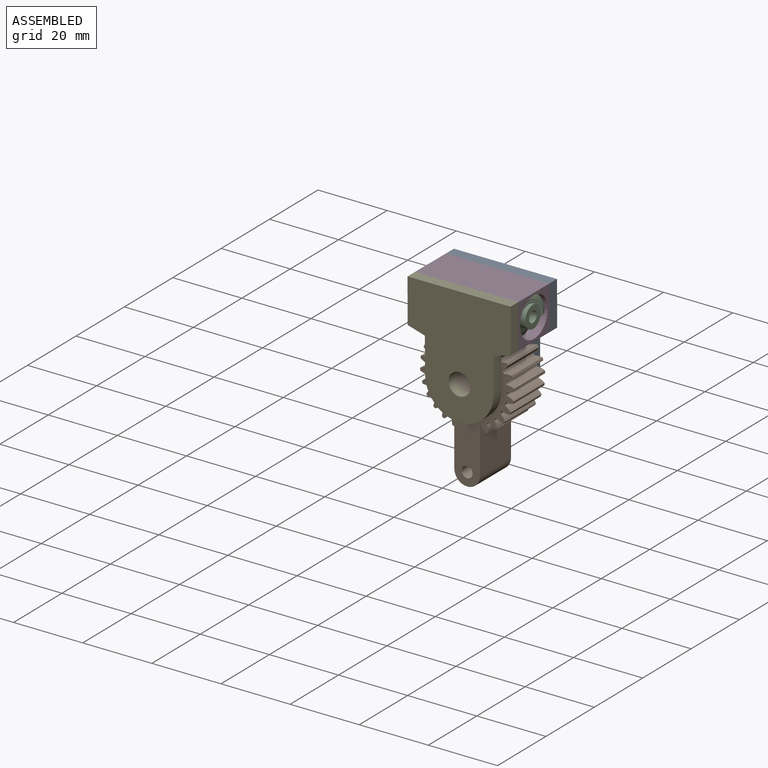
[diagram: assembled view]
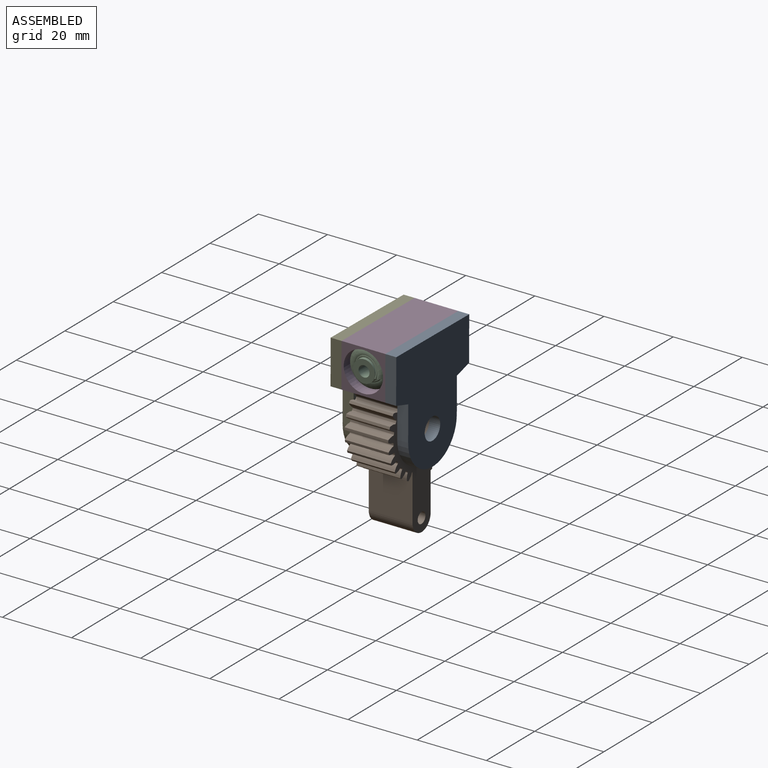
[diagram: assembled view, second angle]
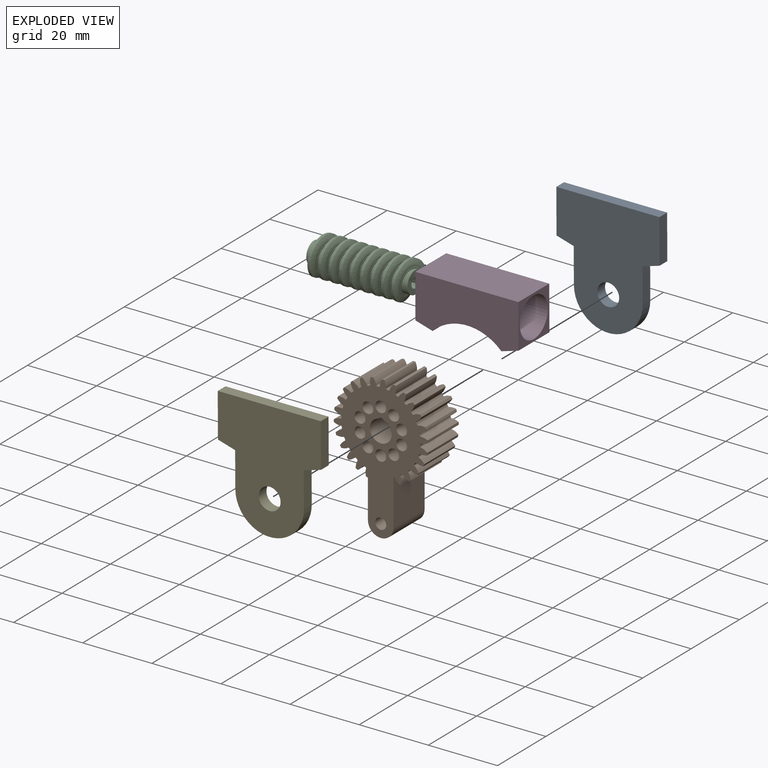
[diagram: exploded view]
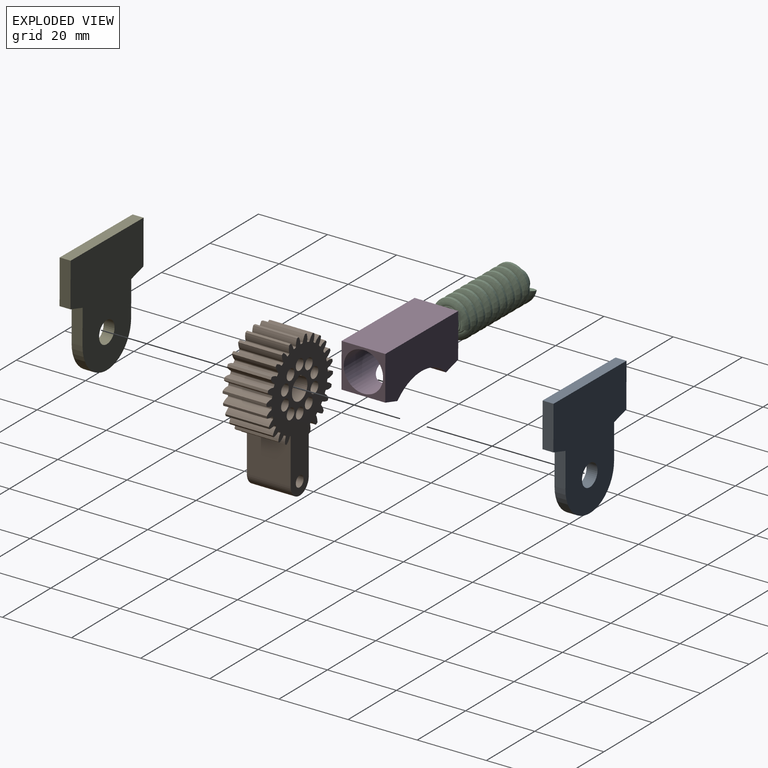
[diagram: exploded view, second angle]
ASSEMBLY  parts=5 mates=4
PART A: 11 faces, bbox 29.9x3.2x34.2 mm
  f0: plane 10.08x3.18mm, normal (-1,0,0), area 32mm2, adj f1,f7,f8,f9
  f1: cylinder r=9.97mm len=19.95mm, axis (0,-1,0), area 99.5mm2, adj f0,f2,f8,f9
  f2: plane 10.08x3.18mm, normal (1,0,0), area 32mm2, adj f1,f3,f8,f9
  f3: plane 4.99x3.18mm, normal (0.28,0,-0.96), area 16.5mm2, adj f2,f4,f8,f9
  f4: plane 12.7x3.18mm, normal (1,0,0), area 40.3mm2, adj f3,f5,f8,f9
  f5: plane 29.92x3.18mm, normal (0,0,1), area 95mm2, adj f4,f6,f8,f9
  f6: plane 12.7x3.18mm, normal (-1,0,0), area 40.3mm2, adj f5,f7,f8,f9
  f7: plane 4.99x3.18mm, normal (-0.28,0,-0.96), area 16.5mm2, adj f0,f6,f8,f9
  f8: plane 34.21x29.92mm, normal (0,1,0), area 742.1mm2, adj f0,f1,f2,f3,f4,f5,f6,f7
  f9: plane 34.21x29.92mm, normal (0,-1,0), area 742.1mm2, adj f0,f1,f2,f3,f4,f5,f6,f7
  f10: cylinder r=3.17mm len=6.35mm, axis (0,-1,0), area 63.3mm2, adj f8,f9
PART B: 161 faces, bbox 27.3x12.7x41.6 mm
  f0: cylinder r=0.35mm len=12.7mm, axis (0,1,0), area 5.9mm2, adj f1,f2,f75,f157
  f1: plane 41.59x27.34mm, normal (0,-1,0), area 490.3mm2, adj f0,f3,f4,f5,f6,f7,f8,f9
  f2: plane 41.59x27.34mm, normal (0,1,0), area 490.3mm2, adj f0,f3,f4,f5,f6,f7,f8,f9
  f3: extruded ~12.7x1.92mm, area 25.2mm2, adj f1,f2,f96,f97
  f4: cylinder r=11.48mm len=12.7mm, axis (0,1,0), area 4.7mm2, adj f1,f2,f97,f98
  f5: extruded ~12.7x1.63mm, area 25.2mm2, adj f1,f2,f6,f98
  f6: cylinder r=13.68mm len=12.7mm, axis (0,1,0), area 9mm2, adj f1,f2,f5,f7
  f7: extruded ~12.7x1.96mm, area 25.2mm2, adj f1,f2,f6,f99
  f8: cylinder r=11.48mm len=12.7mm, axis (0,1,0), area 4.7mm2, adj f1,f2,f99,f100
  f9: extruded ~12.7x1.44mm, area 25.2mm2, adj f1,f2,f10,f100
  f10: cylinder r=13.68mm len=12.7mm, axis (0,1,0), area 9mm2, adj f1,f2,f9,f11
  f11: extruded ~12.7x1.89mm, area 25.2mm2, adj f1,f2,f10,f101
  f12: cylinder r=11.48mm len=12.7mm, axis (0,1,0), area 4.7mm2, adj f1,f2,f101,f102
  f13: extruded ~12.7x1.72mm, area 25.2mm2, adj f1,f2,f14,f102
  f14: cylinder r=13.68mm len=12.7mm, axis (0,1,0), area 9mm2, adj f1,f2,f13,f15
  f15: extruded ~12.7x1.71mm, area 25.2mm2, adj f1,f2,f14,f103
  f16: cylinder r=11.48mm len=12.7mm, axis (0,1,0), area 4.7mm2, adj f1,f2,f103,f104
  f17: extruded ~12.7x1.89mm, area 25.2mm2, adj f1,f2,f18,f104
  f18: cylinder r=13.68mm len=12.7mm, axis (0,1,0), area 9mm2, adj f1,f2,f17,f19
  f19: extruded ~12.7x1.43mm, area 25.2mm2, adj f1,f2,f18,f105
  f20: cylinder r=11.48mm len=12.7mm, axis (0,1,0), area 4.7mm2, adj f1,f2,f105,f106
  f21: extruded ~12.7x1.96mm, area 25.2mm2, adj f1,f2,f22,f106
  f22: cylinder r=13.68mm len=12.7mm, axis (0,1,0), area 9mm2, adj f1,f2,f21,f23
  f23: extruded ~12.7x1.65mm, area 25.2mm2, adj f1,f2,f22,f107
  f24: cylinder r=11.48mm len=12.7mm, axis (0,1,0), area 4.7mm2, adj f1,f2,f107,f108
  f25: extruded ~12.7x1.91mm, area 25.2mm2, adj f1,f2,f26,f108
  f26: cylinder r=13.68mm len=12.7mm, axis (0,1,0), area 9mm2, adj f1,f2,f25,f27
  f27: extruded ~12.7x1.85mm, area 25.2mm2, adj f1,f2,f26,f109
  f28: cylinder r=11.48mm len=12.7mm, axis (0,1,0), area 4.7mm2, adj f1,f2,f109,f110
  f29: extruded ~12.7x1.75mm, area 25.2mm2, adj f1,f2,f30,f110
  f30: cylinder r=13.68mm len=12.7mm, axis (0,1,0), area 9mm2, adj f1,f2,f29,f31
  f31: extruded ~12.7x1.95mm, area 25.2mm2, adj f1,f2,f30,f111
  f32: cylinder r=11.48mm len=12.7mm, axis (0,1,0), area 4.7mm2, adj f1,f2,f111,f112
  f33: extruded ~12.7x1.49mm, area 25.2mm2, adj f1,f2,f34,f112
  f34: cylinder r=13.68mm len=12.7mm, axis (0,1,0), area 9mm2, adj f1,f2,f33,f35
  f35: extruded ~12.7x1.94mm, area 25.2mm2, adj f1,f2,f34,f113
  f36: cylinder r=11.48mm len=12.7mm, axis (0,1,0), area 4.7mm2, adj f1,f2,f113,f114
  f37: extruded ~12.7x1.59mm, area 25.2mm2, adj f1,f2,f38,f114
  f38: cylinder r=13.68mm len=12.7mm, axis (0,1,0), area 9mm2, adj f1,f2,f37,f39
  f39: extruded ~12.7x1.81mm, area 25.2mm2, adj f1,f2,f38,f115
  f40: cylinder r=11.48mm len=12.7mm, axis (0,1,0), area 4.7mm2, adj f1,f2,f115,f116
  f41: extruded ~12.7x1.82mm, area 25.2mm2, adj f1,f2,f42,f116
  f42: cylinder r=13.68mm len=12.7mm, axis (0,1,0), area 9mm2, adj f1,f2,f41,f43
  f43: extruded ~12.7x1.58mm, area 25.2mm2, adj f1,f2,f42,f117
  f44: cylinder r=11.48mm len=12.7mm, axis (0,1,0), area 4.7mm2, adj f1,f2,f117,f118
  f45: extruded ~12.7x1.94mm, area 25.2mm2, adj f1,f2,f46,f118
  f46: cylinder r=13.68mm len=12.7mm, axis (0,1,0), area 9mm2, adj f1,f2,f45,f47
  f47: extruded ~12.7x1.51mm, area 25.2mm2, adj f1,f2,f46,f119
  f48: cylinder r=11.48mm len=12.7mm, axis (0,1,0), area 4.7mm2, adj f1,f2,f119,f120
  f49: extruded ~12.7x1.95mm, area 25.2mm2, adj f1,f2,f50,f120
  f50: cylinder r=13.68mm len=12.7mm, axis (0,1,0), area 9mm2, adj f1,f2,f49,f51
  f51: extruded ~12.7x1.76mm, area 25.2mm2, adj f1,f2,f50,f121
  f52: cylinder r=11.48mm len=12.7mm, axis (0,1,0), area 4.7mm2, adj f1,f2,f121,f122
  f53: extruded ~12.7x1.85mm, area 25.2mm2, adj f1,f2,f54,f122
  f54: cylinder r=13.68mm len=12.7mm, axis (0,1,0), area 9mm2, adj f1,f2,f53,f55
  f55: extruded ~12.7x1.92mm, area 25.2mm2, adj f1,f2,f54,f123
  f56: cylinder r=11.48mm len=12.7mm, axis (0,1,0), area 4.7mm2, adj f1,f2,f123,f124
  f57: extruded ~12.7x1.63mm, area 25.2mm2, adj f1,f2,f58,f124
  f58: cylinder r=13.68mm len=12.7mm, axis (0,1,0), area 9mm2, adj f1,f2,f57,f59
  f59: extruded ~12.7x1.96mm, area 25.2mm2, adj f1,f2,f58,f125
  f60: cylinder r=11.48mm len=12.7mm, axis (0,1,0), area 4.7mm2, adj f1,f2,f125,f126
  f61: extruded ~12.7x1.44mm, area 25.2mm2, adj f1,f2,f62,f126
  f62: cylinder r=13.68mm len=12.7mm, axis (0,1,0), area 9mm2, adj f1,f2,f61,f63
  f63: extruded ~12.7x1.89mm, area 25.2mm2, adj f1,f2,f62,f127
  f64: cylinder r=11.48mm len=12.7mm, axis (0,1,0), area 4.7mm2, adj f1,f2,f127,f128
  f65: extruded ~12.7x1.72mm, area 25.2mm2, adj f1,f2,f66,f128
  f66: cylinder r=13.68mm len=12.7mm, axis (0,1,0), area 9mm2, adj f1,f2,f65,f67
  f67: extruded ~12.7x1.71mm, area 25.2mm2, adj f1,f2,f66,f129
  f68: cylinder r=11.48mm len=12.7mm, axis (0,1,0), area 4.7mm2, adj f1,f2,f129,f130
  f69: extruded ~12.7x1.89mm, area 25.2mm2, adj f1,f2,f70,f130
  f70: cylinder r=13.68mm len=12.7mm, axis (0,1,0), area 9mm2, adj f1,f2,f69,f71
  f71: extruded ~12.7x1.43mm, area 25.2mm2, adj f1,f2,f70,f131
  f72: cylinder r=11.48mm len=12.7mm, axis (0,1,0), area 4.7mm2, adj f1,f2,f131,f132
  f73: extruded ~12.7x1.96mm, area 25.2mm2, adj f1,f2,f74,f132
  f74: cylinder r=13.68mm len=12.7mm, axis (0,1,0), area 7.8mm2, adj f1,f2,f73,f158
  f75: extruded ~12.7x1.49mm, area 25.2mm2, adj f0,f1,f2,f76
  f76: cylinder r=13.68mm len=12.7mm, axis (0,1,0), area 9mm2, adj f1,f2,f75,f77
  f77: extruded ~12.7x1.94mm, area 25.2mm2, adj f1,f2,f76,f133
  f78: cylinder r=11.48mm len=12.7mm, axis (0,1,0), area 4.7mm2, adj f1,f2,f133,f134
  f79: extruded ~12.7x1.59mm, area 25.2mm2, adj f1,f2,f80,f134
  f80: cylinder r=13.68mm len=12.7mm, axis (0,1,0), area 9mm2, adj f1,f2,f79,f81
  f81: extruded ~12.7x1.81mm, area 25.2mm2, adj f1,f2,f80,f135
  f82: cylinder r=11.48mm len=12.7mm, axis (0,1,0), area 4.7mm2, adj f1,f2,f135,f136
  f83: extruded ~12.7x1.82mm, area 25.2mm2, adj f1,f2,f84,f136
  f84: cylinder r=13.68mm len=12.7mm, axis (0,1,0), area 9mm2, adj f1,f2,f83,f85
  f85: extruded ~12.7x1.58mm, area 25.2mm2, adj f1,f2,f84,f137
  f86: cylinder r=11.48mm len=12.7mm, axis (0,1,0), area 4.7mm2, adj f1,f2,f137,f138
  f87: extruded ~12.7x1.94mm, area 25.2mm2, adj f1,f2,f88,f138
  f88: cylinder r=13.68mm len=12.7mm, axis (0,1,0), area 9mm2, adj f1,f2,f87,f89
  f89: extruded ~12.7x1.51mm, area 25.2mm2, adj f1,f2,f88,f139
  f90: cylinder r=11.48mm len=12.7mm, axis (0,1,0), area 4.7mm2, adj f1,f2,f139,f140
  f91: extruded ~12.7x1.95mm, area 25.2mm2, adj f1,f2,f92,f140
  f92: cylinder r=13.68mm len=12.7mm, axis (0,1,0), area 9mm2, adj f1,f2,f91,f93
  f93: extruded ~12.7x1.76mm, area 25.2mm2, adj f1,f2,f92,f141
  f94: cylinder r=11.48mm len=12.7mm, axis (0,1,0), area 4.7mm2, adj f1,f2,f141,f142
  f95: extruded ~12.7x1.85mm, area 25.2mm2, adj f1,f2,f96,f142
  f96: cylinder r=13.68mm len=12.7mm, axis (0,1,0), area 9mm2, adj f1,f2,f3,f95
  f97: cylinder r=0.35mm len=12.7mm, axis (0,1,0), area 6.8mm2, adj f1,f2,f3,f4
  f98: cylinder r=0.35mm len=12.7mm, axis (0,1,0), area 6.8mm2, adj f1,f2,f4,f5
  f99: cylinder r=0.35mm len=12.7mm, axis (0,1,0), area 6.8mm2, adj f1,f2,f7,f8
  f100: cylinder r=0.35mm len=12.7mm, axis (0,1,0), area 6.8mm2, adj f1,f2,f8,f9
  f101: cylinder r=0.35mm len=12.7mm, axis (0,1,0), area 6.8mm2, adj f1,f2,f11,f12
  f102: cylinder r=0.35mm len=12.7mm, axis (0,1,0), area 6.8mm2, adj f1,f2,f12,f13
  f103: cylinder r=0.35mm len=12.7mm, axis (0,1,0), area 6.8mm2, adj f1,f2,f15,f16
  f104: cylinder r=0.35mm len=12.7mm, axis (0,1,0), area 6.8mm2, adj f1,f2,f16,f17
  f105: cylinder r=0.35mm len=12.7mm, axis (0,1,0), area 6.8mm2, adj f1,f2,f19,f20
  f106: cylinder r=0.35mm len=12.7mm, axis (0,1,0), area 6.8mm2, adj f1,f2,f20,f21
  f107: cylinder r=0.35mm len=12.7mm, axis (0,1,0), area 6.8mm2, adj f1,f2,f23,f24
  f108: cylinder r=0.35mm len=12.7mm, axis (0,1,0), area 6.8mm2, adj f1,f2,f24,f25
  f109: cylinder r=0.35mm len=12.7mm, axis (0,1,0), area 6.8mm2, adj f1,f2,f27,f28
  f110: cylinder r=0.35mm len=12.7mm, axis (0,1,0), area 6.8mm2, adj f1,f2,f28,f29
  f111: cylinder r=0.35mm len=12.7mm, axis (0,1,0), area 6.8mm2, adj f1,f2,f31,f32
  f112: cylinder r=0.35mm len=12.7mm, axis (0,1,0), area 6.8mm2, adj f1,f2,f32,f33
  f113: cylinder r=0.35mm len=12.7mm, axis (0,1,0), area 6.8mm2, adj f1,f2,f35,f36
  f114: cylinder r=0.35mm len=12.7mm, axis (0,1,0), area 6.8mm2, adj f1,f2,f36,f37
  f115: cylinder r=0.35mm len=12.7mm, axis (0,1,0), area 6.8mm2, adj f1,f2,f39,f40
  f116: cylinder r=0.35mm len=12.7mm, axis (0,1,0), area 6.8mm2, adj f1,f2,f40,f41
  f117: cylinder r=0.35mm len=12.7mm, axis (0,1,0), area 6.8mm2, adj f1,f2,f43,f44
  f118: cylinder r=0.35mm len=12.7mm, axis (0,1,0), area 6.8mm2, adj f1,f2,f44,f45
  f119: cylinder r=0.35mm len=12.7mm, axis (0,1,0), area 6.8mm2, adj f1,f2,f47,f48
  f120: cylinder r=0.35mm len=12.7mm, axis (0,1,0), area 6.8mm2, adj f1,f2,f48,f49
  f121: cylinder r=0.35mm len=12.7mm, axis (0,1,0), area 6.8mm2, adj f1,f2,f51,f52
  f122: cylinder r=0.35mm len=12.7mm, axis (0,1,0), area 6.8mm2, adj f1,f2,f52,f53
  f123: cylinder r=0.35mm len=12.7mm, axis (0,1,0), area 6.8mm2, adj f1,f2,f55,f56
  f124: cylinder r=0.35mm len=12.7mm, axis (0,1,0), area 6.8mm2, adj f1,f2,f56,f57
  f125: cylinder r=0.35mm len=12.7mm, axis (0,1,0), area 6.8mm2, adj f1,f2,f59,f60
  f126: cylinder r=0.35mm len=12.7mm, axis (0,1,0), area 6.8mm2, adj f1,f2,f60,f61
  f127: cylinder r=0.35mm len=12.7mm, axis (0,1,0), area 6.8mm2, adj f1,f2,f63,f64
  f128: cylinder r=0.35mm len=12.7mm, axis (0,1,0), area 6.8mm2, adj f1,f2,f64,f65
  f129: cylinder r=0.35mm len=12.7mm, axis (0,1,0), area 6.8mm2, adj f1,f2,f67,f68
  f130: cylinder r=0.35mm len=12.7mm, axis (0,1,0), area 6.8mm2, adj f1,f2,f68,f69
  f131: cylinder r=0.35mm len=12.7mm, axis (0,1,0), area 6.8mm2, adj f1,f2,f71,f72
  f132: cylinder r=0.35mm len=12.7mm, axis (0,1,0), area 6.8mm2, adj f1,f2,f72,f73
  f133: cylinder r=0.35mm len=12.7mm, axis (0,1,0), area 6.8mm2, adj f1,f2,f77,f78
  f134: cylinder r=0.35mm len=12.7mm, axis (0,1,0), area 6.8mm2, adj f1,f2,f78,f79
  f135: cylinder r=0.35mm len=12.7mm, axis (0,1,0), area 6.8mm2, adj f1,f2,f81,f82
  f136: cylinder r=0.35mm len=12.7mm, axis (0,1,0), area 6.8mm2, adj f1,f2,f82,f83
  f137: cylinder r=0.35mm len=12.7mm, axis (0,1,0), area 6.8mm2, adj f1,f2,f85,f86
  f138: cylinder r=0.35mm len=12.7mm, axis (0,1,0), area 6.8mm2, adj f1,f2,f86,f87
  f139: cylinder r=0.35mm len=12.7mm, axis (0,1,0), area 6.8mm2, adj f1,f2,f89,f90
  f140: cylinder r=0.35mm len=12.7mm, axis (0,1,0), area 6.8mm2, adj f1,f2,f90,f91
  f141: cylinder r=0.35mm len=12.7mm, axis (0,1,0), area 6.8mm2, adj f1,f2,f93,f94
  f142: cylinder r=0.35mm len=12.7mm, axis (0,1,0), area 6.8mm2, adj f1,f2,f94,f95
  f143: cylinder r=1.59mm len=12.7mm, axis (0,-1,0), area 126.7mm2, adj f1,f2
  f144: cylinder r=1.59mm len=12.7mm, axis (0,-1,0), area 126.7mm2, adj f1,f2
  f145: cylinder r=1.59mm len=12.7mm, axis (0,-1,0), area 126.7mm2, adj f1,f2
  f146: cylinder r=1.59mm len=12.7mm, axis (0,-1,0), area 126.7mm2, adj f1,f2
  f147: cylinder r=1.59mm len=12.7mm, axis (0,-1,0), area 126.7mm2, adj f1,f2
  f148: cylinder r=1.59mm len=12.7mm, axis (0,-1,0), area 126.7mm2, adj f1,f2
  f149: cylinder r=1.59mm len=12.7mm, axis (0,-1,0), area 126.7mm2, adj f1,f2
  f150: cylinder r=1.59mm len=12.7mm, axis (0,-1,0), area 126.7mm2, adj f1,f2
  f151: cylinder r=1.59mm len=12.7mm, axis (0,-1,0), area 126.7mm2, adj f1,f2
  f152: cylinder r=1.59mm len=12.7mm, axis (0,-1,0), area 126.7mm2, adj f1,f2
  f153: cylinder r=3.17mm len=12.7mm, axis (0,-1,0), area 237.1mm2, adj f1,f2,f155,f156
  f154: plane 12.7x1.27mm, normal (0,0,-1), area 16.1mm2, adj f1,f2,f155,f156
  f155: plane 12.7x0.35mm, normal (-1,0,0), area 4.4mm2, adj f1,f2,f153,f154
  f156: plane 12.7x0.35mm, normal (1,0,0), area 4.4mm2, adj f1,f2,f153,f154
  f157: plane 13.32x12.7mm, normal (1,0,0), area 169.2mm2, adj f0,f1,f2,f159
  f158: plane 12.7x11.03mm, normal (-1,0,0), area 140.1mm2, adj f1,f2,f74,f159
  f159: cylinder r=3.73mm len=12.7mm, axis (0,-1,0), area 148.9mm2, adj f1,f2,f157,f158
  f160: cylinder r=1.59mm len=12.7mm, axis (0,-1,0), area 126.7mm2, adj f1,f2
PART C: 13 faces, bbox 29.4x12.5x12.8 mm
  f0: plane 6.35x6.35mm, normal (-1,0,0.01), area 23.8mm2, adj f1,f12
  f1: cylinder r=3.17mm len=29.43mm, axis (-1,0,0.01), area 233.5mm2, adj f0,f2,f8,f9,f10,f11
  f2: plane 2.66x2mm, normal (0,1,0), area 4.2mm2, adj f1,f3,f4,f5,f6,f7,f8,f9
  f3: bspline ~27.49x8.82mm, area 52.9mm2, adj f2,f4,f9,f10
  f4: bspline ~27.95x12.74mm, area 520mm2, adj f2,f3,f5,f10
  f5: bspline ~28.13x12.75mm, area 233.2mm2, adj f2,f4,f6,f10
  f6: bspline ~27.97x12.74mm, area 529.5mm2, adj f2,f5,f7,f10
  f7: bspline ~27.49x8.82mm, area 54.9mm2, adj f2,f6,f8,f10
  f8: bspline ~27.4x8.3mm, area 72.5mm2, adj f1,f2,f7,f10
  f9: bspline ~27.4x8.3mm, area 72.5mm2, adj f1,f2,f3,f10
  f10: plane 2.66x2mm, normal (0,-1,0), area 4.2mm2, adj f1,f3,f4,f5,f6,f7,f8,f9
  f11: plane 6.35x6.35mm, normal (1,0,-0.01), area 23.8mm2, adj f1,f12
  f12: cylinder r=1.59mm len=29.42mm, axis (1,0,-0.01), area 293.2mm2, adj f0,f11
PART D: 9 faces, bbox 29.9x12.7x14.2 mm
  f0: cylinder r=14.18mm len=19.95mm, axis (0,1,0), area 174.3mm2, adj f1,f5,f6,f7,f8
  f1: plane 12.7x4.99mm, normal (0.28,0,-0.96), area 66mm2, adj f0,f2,f6,f7
  f2: plane 12.7x12.7mm, normal (1,0,0), area 58.7mm2, adj f1,f3,f6,f7,f8
  f3: plane 29.92x12.7mm, normal (0,0,1), area 380mm2, adj f2,f4,f6,f7
  f4: plane 12.7x12.7mm, normal (-1,0,0), area 58.7mm2, adj f3,f5,f6,f7,f8
  f5: plane 12.7x4.99mm, normal (-0.28,0,-0.96), area 66mm2, adj f0,f4,f6,f7
  f6: plane 29.92x14.16mm, normal (0,-1,0), area 360mm2, adj f0,f1,f2,f3,f4,f5
  f7: plane 29.92x14.16mm, normal (0,1,0), area 360mm2, adj f0,f1,f2,f3,f4,f5
  f8: cylinder r=5.71mm len=29.92mm, axis (-1,0,0), area 961.3mm2, adj f0,f2,f4
PART E: same geometry as A
PLACE A rot(axis=(0,-0.66,-0.75),0.4deg) t=(-14.44,-4.86,17.12)mm
PLACE B rot(axis=(0,0,-1),0.3deg) t=(-14.44,-4.86,17.12)mm
PLACE C rot(axis=(-1,0,0),82.2deg) t=(-13.77,-28.54,30.25)mm
PLACE D rot(axis=(0,-0.66,-0.75),0.4deg) t=(-14.44,-4.86,17.12)mm
PLACE E rot(axis=(0,-0.66,-0.75),0.4deg) t=(-14.52,-20.74,17.12)mm
MATE revolute B.f6 <-> E.f10  axis (-0.01,-1,0) through (-14.51,-17.56,17.12)mm
MATE revolute C.f1 <-> D.f8  axis (1,-0.01,0) through (-14.55,-11.21,35)mm
MATE fastened E.f8 <-> D.f6  axis (0.01,1,0) through (-14.62,-17.56,41.35)mm
MATE fastened A.f9 <-> D.f7  axis (-0.01,-1,0) through (-14.55,-4.86,41.35)mm
